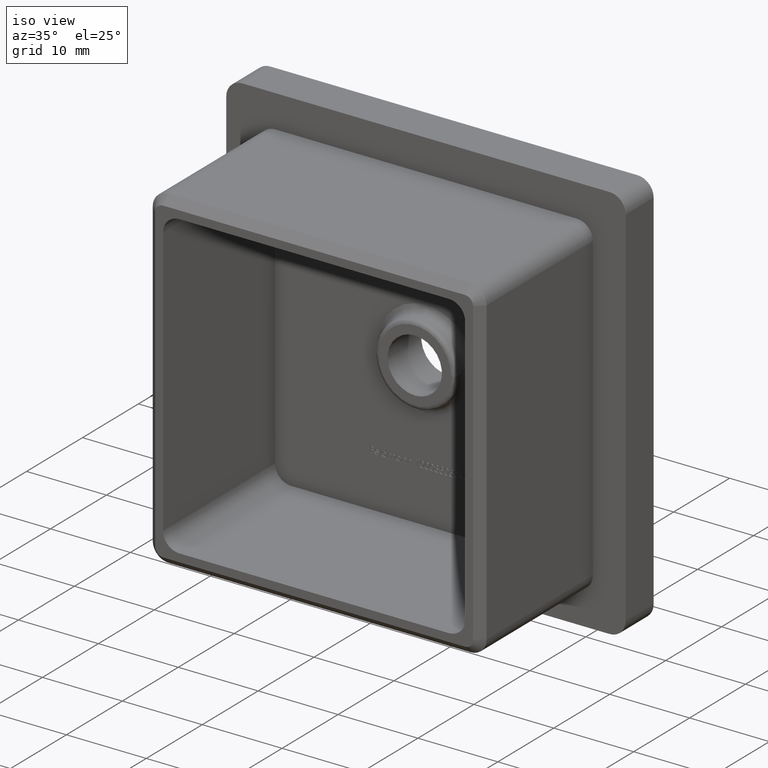
[diagram: clean part render]
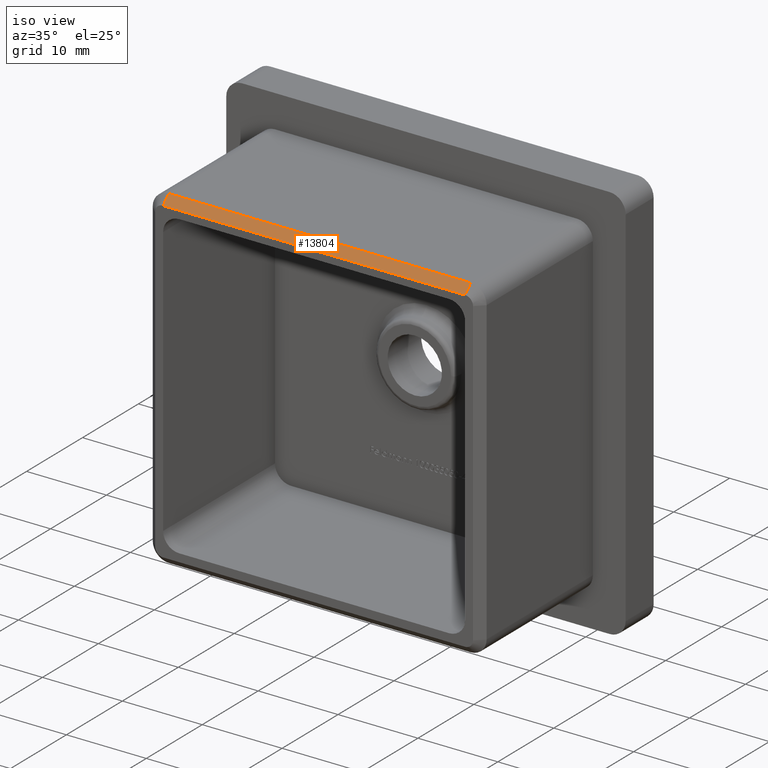
[diagram: same view with one face highlighted and labeled with its STEP entity id]
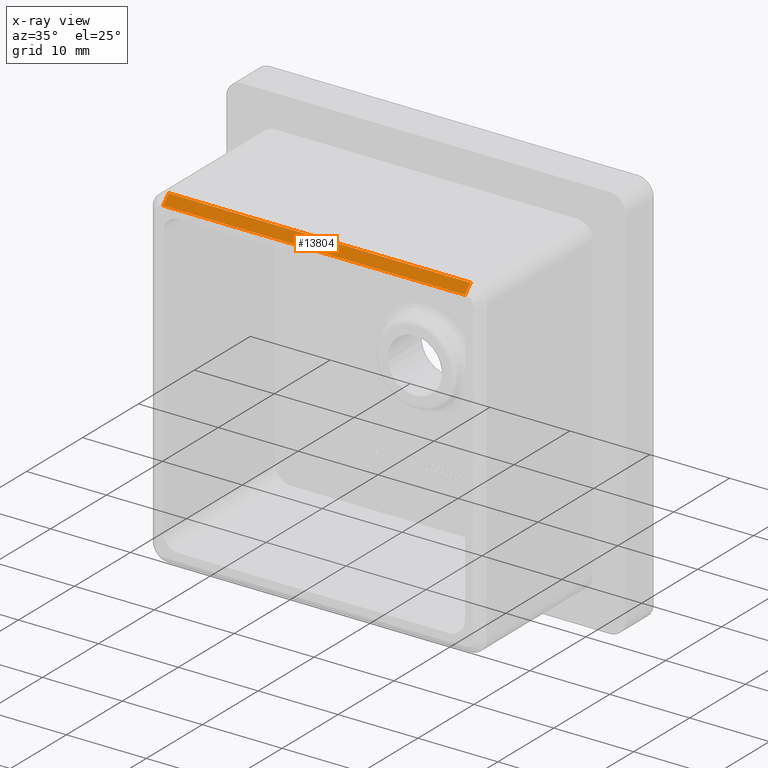
[diagram: x-ray of the same camera — body ghosted, the highlighted face saturated]
A machine part, iso view. The second image highlights one B-rep face of the part: STEP entity #13804.
The next image is the same camera in x-ray: the body ghosted, the highlighted face saturated — about 0% of this face is hidden behind the body in this view.
In plain terms, the highlighted planar face has unit normal (0, -0.7071, 0.7071).
Its self-contained STEP definition (entity closure, byte-faithful):
#182 = VERTEX_POINT ( 'NONE', #261 ) ;
#261 = CARTESIAN_POINT ( 'NONE',  ( -18.89999999999998800, -18.99999999999999300, 20.89999999999998800 ) ) ;
#330 = ORIENTED_EDGE ( 'NONE', *, *, #6319, .F. ) ;
#410 = VECTOR ( 'NONE', #1212, 1000.000000000000100 ) ;
#903 = CARTESIAN_POINT ( 'NONE',  ( -18.89999999999998800, -18.99999999999999300, 20.89999999999998800 ) ) ;
#1212 = DIRECTION ( 'NONE',  ( 0.0000000000000000000, -0.7071067811865474600, -0.7071067811865474600 ) ) ;
#1764 = LINE ( 'NONE', #2432, #16036 ) ;
#1820 = CARTESIAN_POINT ( 'NONE',  ( 18.89999999999998800, -20.00000000000000000, 19.89999999999998100 ) ) ;
#2432 = CARTESIAN_POINT ( 'NONE',  ( 18.89999999999997400, -18.99999999999999300, 20.89999999999998800 ) ) ;
#2669 = CARTESIAN_POINT ( 'NONE',  ( -18.89999999999998800, -20.00000000000000000, 19.89999999999998100 ) ) ;
#2898 = CARTESIAN_POINT ( 'NONE',  ( 0.0000000000000000000, -20.00000000000000000, 19.89999999999998100 ) ) ;
#3769 = ORIENTED_EDGE ( 'NONE', *, *, #3906, .F. ) ;
#3906 = EDGE_CURVE ( 'NONE', #182, #4156, #1764, .T. ) ;
#4156 = VERTEX_POINT ( 'NONE', #7725 ) ;
#4460 = VERTEX_POINT ( 'NONE', #1820 ) ;
#5531 = DIRECTION ( 'NONE',  ( 1.000000000000000000, 0.0000000000000000000, 0.0000000000000000000 ) ) ;
#5658 = EDGE_CURVE ( 'NONE', #4460, #13389, #10890, .T. ) ;
#6319 = EDGE_CURVE ( 'NONE', #4156, #4460, #11330, .T. ) ;
#6444 = DIRECTION ( 'NONE',  ( -1.000000000000000000, 0.0000000000000000000, 0.0000000000000000000 ) ) ;
#6480 = EDGE_CURVE ( 'NONE', #182, #13389, #13555, .T. ) ;
#6872 = AXIS2_PLACEMENT_3D ( 'NONE', #2898, #12938, #12822 ) ;
#7725 = CARTESIAN_POINT ( 'NONE',  ( 18.89999999999998800, -18.99999999999999300, 20.89999999999998800 ) ) ;
#9711 = DIRECTION ( 'NONE',  ( 0.0000000000000000000, -0.7071067811865474600, -0.7071067811865474600 ) ) ;
#10295 = ORIENTED_EDGE ( 'NONE', *, *, #6480, .T. ) ;
#10890 = LINE ( 'NONE', #13479, #13578 ) ;
#11250 = CARTESIAN_POINT ( 'NONE',  ( 18.89999999999998800, -18.99999999999999300, 20.89999999999998800 ) ) ;
#11330 = LINE ( 'NONE', #11250, #14927 ) ;
#11401 = PLANE ( 'NONE',  #6872 ) ;
#12822 = DIRECTION ( 'NONE',  ( 1.000000000000000000, 0.0000000000000000000, 0.0000000000000000000 ) ) ;
#12938 = DIRECTION ( 'NONE',  ( 0.0000000000000000000, -0.7071067811865475700, 0.7071067811865475700 ) ) ;
#13065 = FACE_OUTER_BOUND ( 'NONE', #14975, .T. ) ;
#13389 = VERTEX_POINT ( 'NONE', #2669 ) ;
#13479 = CARTESIAN_POINT ( 'NONE',  ( -18.89999999999998800, -20.00000000000000000, 19.89999999999998100 ) ) ;
#13555 = LINE ( 'NONE', #903, #410 ) ;
#13578 = VECTOR ( 'NONE', #6444, 1000.000000000000000 ) ;
#13804 = ADVANCED_FACE ( 'NONE', ( #13065 ), #11401, .T. ) ;
#14927 = VECTOR ( 'NONE', #9711, 1000.000000000000100 ) ;
#14975 = EDGE_LOOP ( 'NONE', ( #10295, #17404, #330, #3769 ) ) ;
#16036 = VECTOR ( 'NONE', #5531, 1000.000000000000000 ) ;
#17404 = ORIENTED_EDGE ( 'NONE', *, *, #5658, .F. ) ;